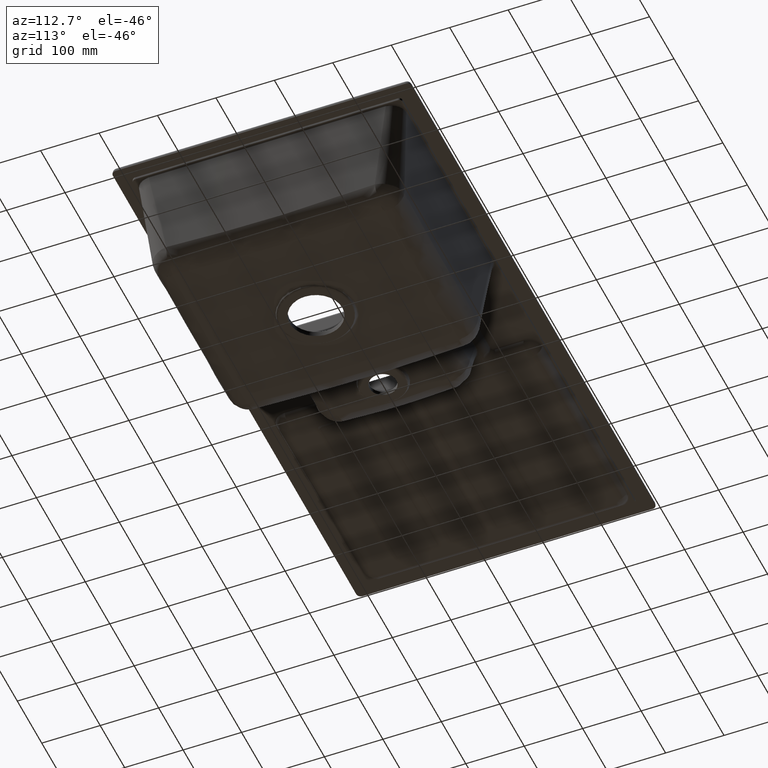
[diagram: clean part render]
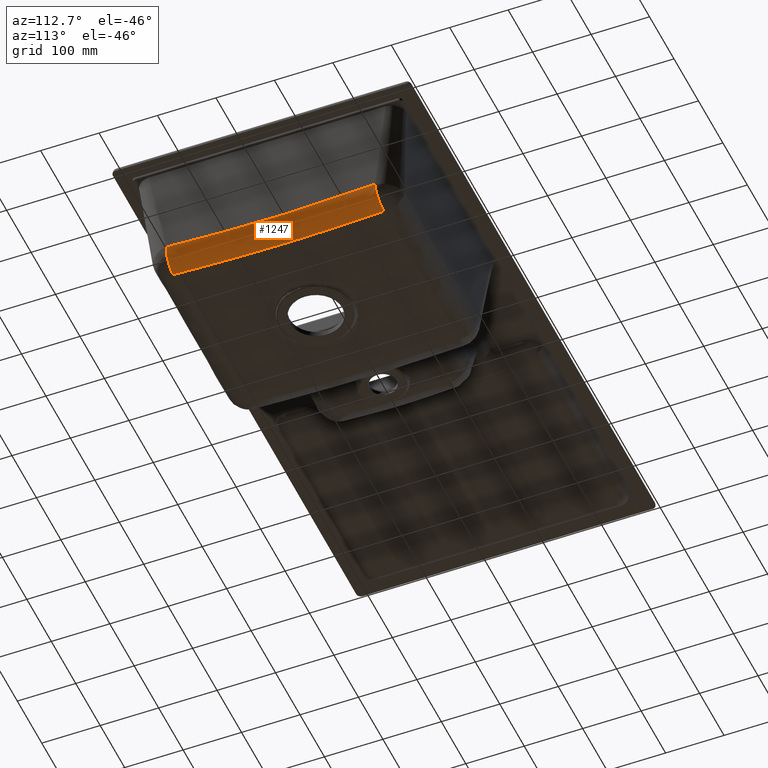
[diagram: same view with one face highlighted and labeled with its STEP entity id]
A machine part, auxiliary view. The second image highlights one B-rep face of the part: STEP entity #1247.
In plain terms, the highlighted face is a freeform B-spline surface patch.
Its self-contained STEP definition (entity closure, byte-faithful):
#192=(
BOUNDED_SURFACE()
B_SPLINE_SURFACE(3,2,((#14619,#14620,#14621),(#14622,#14623,#14624),(#14625,
#14626,#14627),(#14628,#14629,#14630),(#14631,#14632,#14633),(#14634,#14635,
#14636),(#14637,#14638,#14639),(#14640,#14641,#14642),(#14643,#14644,#14645),
(#14646,#14647,#14648)),.UNSPECIFIED.,.F.,.F.,.F.)
B_SPLINE_SURFACE_WITH_KNOTS((4,2,2,2,4),(3,3),(0.,0.25,0.5,0.75,1.),(0.,
1.),.UNSPECIFIED.)
GEOMETRIC_REPRESENTATION_ITEM()
RATIONAL_B_SPLINE_SURFACE(((1.,0.752344017055781,1.),(1.,0.753747401310163,
1.),(1.,0.755561926465457,1.),(1.,0.75894096236031,1.),(1.,0.760407728355347,
1.),(1.,0.760404199300868,1.),(1.,0.758936540185604,1.),(1.,0.755559859895283,
1.),(1.,0.753746818687007,1.),(1.,0.752344017048659,1.)))
REPRESENTATION_ITEM('')
SURFACE()
);
#474=FACE_OUTER_BOUND('',#1883,.T.);
#836=(
BOUNDED_CURVE()
B_SPLINE_CURVE(3,(#14605,#14606,#14607,#14608,#14609,#14610,#14611,#14612,
#14613,#14614),.UNSPECIFIED.,.F.,.F.)
B_SPLINE_CURVE_WITH_KNOTS((4,2,2,2,4),(0.,0.25,0.5,0.75,1.),
 .UNSPECIFIED.)
CURVE()
GEOMETRIC_REPRESENTATION_ITEM()
RATIONAL_B_SPLINE_CURVE((1.,1.,1.,1.,1.,1.,1.,1.,1.,1.))
REPRESENTATION_ITEM('')
);
#837=(
BOUNDED_CURVE()
B_SPLINE_CURVE(2,(#14616,#14617,#14618),.UNSPECIFIED.,.F.,.F.)
B_SPLINE_CURVE_WITH_KNOTS((3,3),(0.,1.),.UNSPECIFIED.)
CURVE()
GEOMETRIC_REPRESENTATION_ITEM()
RATIONAL_B_SPLINE_CURVE((1.,0.752344017048659,1.))
REPRESENTATION_ITEM('')
);
#1247=ADVANCED_FACE('',(#474),#192,.F.);
#1883=EDGE_LOOP('',(#3066,#3067,#3068,#3069));
#3066=ORIENTED_EDGE('',*,*,#5189,.F.);
#3067=ORIENTED_EDGE('',*,*,#5191,.T.);
#3068=ORIENTED_EDGE('',*,*,#5192,.T.);
#3069=ORIENTED_EDGE('',*,*,#4935,.F.);
#4252=VERTEX_POINT('',#10881);
#4253=VERTEX_POINT('',#10882);
#4396=VERTEX_POINT('',#14540);
#4397=VERTEX_POINT('',#14615);
#4935=EDGE_CURVE('',#4252,#4253,#5823,.T.);
#5189=EDGE_CURVE('',#4396,#4252,#5992,.T.);
#5191=EDGE_CURVE('',#4396,#4397,#836,.T.);
#5192=EDGE_CURVE('',#4397,#4253,#837,.T.);
#5823=B_SPLINE_CURVE_WITH_KNOTS('',3,(#10811,#10812,#10813,#10814,#10815,
#10816,#10817,#10818,#10819,#10820,#10821,#10822,#10823,#10824,#10825,#10826,
#10827,#10828,#10829,#10830,#10831,#10832,#10833,#10834,#10835,#10836,#10837,
#10838,#10839,#10840,#10841,#10842,#10843,#10844,#10845,#10846,#10847,#10848,
#10849,#10850,#10851,#10852,#10853,#10854,#10855,#10856,#10857,#10858,#10859,
#10860,#10861,#10862,#10863,#10864,#10865,#10866,#10867,#10868,#10869,#10870,
#10871,#10872,#10873,#10874,#10875,#10876,#10877,#10878,#10879,#10880),
 .UNSPECIFIED.,.F.,.F.,(4,2,2,1,2,2,2,2,2,1,2,2,2,2,2,2,2,2,2,2,2,2,2,2,
2,2,1,2,2,2,2,2,1,2,2,2,4),(0.,0.124999999999997,0.128906249999997,0.132812499999997,
0.140624999999996,0.156249999999995,0.187499999999992,0.249999999999987,
0.253906249999987,0.257812499999987,0.265624999999987,0.281249999999987,
0.312499999999987,0.374999999999988,0.382812499999988,0.390624999999987,
0.406249999999987,0.437499999999988,0.499999999999989,0.624999999999992,
0.632812499999993,0.640624999999993,0.656249999999993,0.687499999999994,
0.749999999999996,0.753906249999997,0.757812499999997,0.765624999999997,
0.781249999999997,0.812499999999998,0.875,0.87890625,0.8828125,0.890625,
0.90625,0.9375,1.),.UNSPECIFIED.);
#5992=B_SPLINE_CURVE_WITH_KNOTS('',3,(#14530,#14531,#14532,#14533,#14534,
#14535,#14536,#14537,#14538,#14539),.UNSPECIFIED.,.F.,.F.,(4,2,2,2,4),(0.,
0.25,0.5,0.75,1.),.UNSPECIFIED.);
#10811=CARTESIAN_POINT('',(936.768733568287,435.255470537962,-201.871663707372));
#10812=CARTESIAN_POINT('',(936.773353877904,419.377815171358,-202.716138483163));
#10813=CARTESIAN_POINT('',(936.797080239321,404.390485333206,-203.465288880352));
#10814=CARTESIAN_POINT('',(936.827657070809,389.749353843615,-204.13954696202));
#10815=CARTESIAN_POINT('',(936.828801660826,389.208933578888,-204.164363398395));
#10816=CARTESIAN_POINT('',(936.830912202175,388.227188650334,-204.209289854346));
#10817=CARTESIAN_POINT('',(936.834115663055,386.756911813696,-204.276357494767));
#10818=CARTESIAN_POINT('',(936.83741668563,385.2936076423,-204.342459004672));
#10819=CARTESIAN_POINT('',(936.844113721656,382.376158042772,-204.473373850463));
#10820=CARTESIAN_POINT('',(936.848703221138,380.443406112063,-204.558932848962));
#10821=CARTESIAN_POINT('',(936.86263662106,374.680589496312,-204.810457148378));
#10822=CARTESIAN_POINT('',(936.872123540029,370.88601291443,-204.971269753213));
#10823=CARTESIAN_POINT('',(936.900445180077,359.632871194684,-205.433096783386));
#10824=CARTESIAN_POINT('',(936.919080851809,352.305786922616,-205.713500424397));
#10825=CARTESIAN_POINT('',(936.939399901324,344.664045169129,-205.982230681837));
#10826=CARTESIAN_POINT('',(936.940767586865,344.143145328581,-206.000446173988));
#10827=CARTESIAN_POINT('',(936.943277473626,343.174750169656,-206.034089700445));
#10828=CARTESIAN_POINT('',(936.946991478362,341.724161113708,-206.084175362236));
#10829=CARTESIAN_POINT('',(936.950573010693,340.279445831781,-206.133122140341));
#10830=CARTESIAN_POINT('',(936.957609356868,337.397466531242,-206.22949718497));
#10831=CARTESIAN_POINT('',(936.962133173641,335.48608719935,-206.291722532614));
#10832=CARTESIAN_POINT('',(936.975545798453,329.778539981534,-206.47232452922));
#10833=CARTESIAN_POINT('',(936.984324098756,326.009046320264,-206.584627131858));
#10834=CARTESIAN_POINT('',(937.011539333375,314.778345215245,-206.897238754468));
#10835=CARTESIAN_POINT('',(937.032273044301,307.396165858608,-207.07325158914));
#10836=CARTESIAN_POINT('',(937.048397769876,299.105242058711,-207.234821750193));
#10837=CARTESIAN_POINT('',(937.050035925226,298.113392436329,-207.253617068514));
#10838=CARTESIAN_POINT('',(937.052744816352,296.207620701501,-207.288612337367));
#10839=CARTESIAN_POINT('',(937.053886791504,295.257081052401,-207.305525875265));
#10840=CARTESIAN_POINT('',(937.056895688772,292.411725180759,-207.354514199372));
#10841=CARTESIAN_POINT('',(937.058356300482,290.523177015345,-207.384836695996));
#10842=CARTESIAN_POINT('',(937.062490538482,284.876206640437,-207.468795027524));
#10843=CARTESIAN_POINT('',(937.065105090849,281.136521907766,-207.515421704085));
#10844=CARTESIAN_POINT('',(937.077188491259,269.938596155451,-207.627265100397));
#10845=CARTESIAN_POINT('',(937.09440513962,262.501850246461,-207.664445186775));
#10846=CARTESIAN_POINT('',(937.094463650558,239.820778416954,-207.66383891242));
#10847=CARTESIAN_POINT('',(937.07605149127,225.190296713251,-207.514047182916));
#10848=CARTESIAN_POINT('',(937.044540896165,208.913418256699,-207.196168826735));
#10849=CARTESIAN_POINT('',(937.042699783696,208.029590871358,-207.178406393266));
#10850=CARTESIAN_POINT('',(937.038689354906,206.187395232368,-207.140429901099));
#10851=CARTESIAN_POINT('',(937.036591451915,205.265930326475,-207.120936544395));
#10852=CARTESIAN_POINT('',(937.030113659251,202.499858653709,-207.060941142418));
#10853=CARTESIAN_POINT('',(937.025555205096,200.653570122604,-207.018923765282));
#10854=CARTESIAN_POINT('',(937.011699671251,195.103545734468,-206.886810306422));
#10855=CARTESIAN_POINT('',(937.00228994213,191.388569673612,-206.790652897244));
#10856=CARTESIAN_POINT('',(936.975008348635,180.166111190146,-206.477935359895));
#10857=CARTESIAN_POINT('',(936.958552669483,172.579765722018,-206.237129921911));
#10858=CARTESIAN_POINT('',(936.93671632212,164.332304692251,-205.946926621817));
#10859=CARTESIAN_POINT('',(936.935624067135,163.918588173195,-205.932280415123));
#10860=CARTESIAN_POINT('',(936.9332521652,163.018141759172,-205.900242144338));
#10861=CARTESIAN_POINT('',(936.929698962902,161.665875731301,-205.85186345643));
#10862=CARTESIAN_POINT('',(936.926157845373,160.308719224429,-205.802520923326));
#10863=CARTESIAN_POINT('',(936.91908623183,157.587625555104,-205.702550730191));
#10864=CARTESIAN_POINT('',(936.914385764675,155.764518774507,-205.634190432199));
#10865=CARTESIAN_POINT('',(936.900283560668,150.266112099684,-205.423969030515));
#10866=CARTESIAN_POINT('',(936.890867782458,146.56167357697,-205.276967419114));
#10867=CARTESIAN_POINT('',(936.862516801813,135.318174135434,-204.815400554082));
#10868=CARTESIAN_POINT('',(936.843001162459,127.648211701526,-204.480273269618));
#10869=CARTESIAN_POINT('',(936.825628941366,119.284926776296,-204.095070986196));
#10870=CARTESIAN_POINT('',(936.824823558755,118.889304854667,-204.076791274681));
#10871=CARTESIAN_POINT('',(936.823038372608,117.999432078522,-204.03557382544));
#10872=CARTESIAN_POINT('',(936.820401541787,116.662325348913,-203.973468871704));
#10873=CARTESIAN_POINT('',(936.817877311943,115.318284241427,-203.91052757834));
#10874=CARTESIAN_POINT('',(936.812955621333,112.620850384641,-203.783529872107));
#10875=CARTESIAN_POINT('',(936.809841970615,110.810090493378,-203.697377908613));
#10876=CARTESIAN_POINT('',(936.800870173816,105.339619161033,-203.434461540113));
#10877=CARTESIAN_POINT('',(936.795352991793,101.641689999585,-203.25323665709));
#10878=CARTESIAN_POINT('',(936.780073410944,90.3898129917292,-202.691720095955));
#10879=CARTESIAN_POINT('',(936.771042001869,82.6774422902777,-202.293586505774));
#10880=CARTESIAN_POINT('',(936.768733568244,74.7445293140849,-201.871663699503));
#10881=CARTESIAN_POINT('',(936.768733568287,435.255470537962,-201.871663707371));
#10882=CARTESIAN_POINT('',(936.768733568244,74.7445293140848,-201.871663699502));
#14530=CARTESIAN_POINT('',(969.100109471057,433.45109122863,-170.917781251958));
#14531=CARTESIAN_POINT('',(968.775220889765,433.650953178796,-174.631274728692));
#14532=CARTESIAN_POINT('',(967.799829728445,433.863990723447,-178.534536815705));
#14533=CARTESIAN_POINT('',(964.333533711468,434.278286782567,-185.987937700863));
#14534=CARTESIAN_POINT('',(961.837576164351,434.478647149868,-189.520818875612));
#14535=CARTESIAN_POINT('',(955.6874565554,434.821878709381,-195.40890975163));
#14536=CARTESIAN_POINT('',(952.047619443868,434.963950441527,-197.750404823829));
#14537=CARTESIAN_POINT('',(944.444312981481,435.167436988886,-200.8949808081));
#14538=CARTESIAN_POINT('',(940.4978978576,435.229080158482,-201.703829139108));
#14539=CARTESIAN_POINT('',(936.768733568287,435.255470537962,-201.871663707371));
#14540=CARTESIAN_POINT('',(969.100109471057,433.45109122863,-170.917781251958));
#14605=CARTESIAN_POINT('',(969.100109471057,433.45109122863,-170.917781251958));
#14606=CARTESIAN_POINT('',(968.961170883708,403.718333714437,-172.505856572226));
#14607=CARTESIAN_POINT('',(968.835416311012,373.979126174084,-173.943237915458));
#14608=CARTESIAN_POINT('',(968.650019991229,314.469146223375,-176.062327547314));
#14609=CARTESIAN_POINT('',(968.593252317202,284.69314409687,-176.711185030549));
#14610=CARTESIAN_POINT('',(968.593396577104,225.187345304894,-176.709536132327));
#14611=CARTESIAN_POINT('',(968.650232436505,195.44857767799,-176.059899286701));
#14612=CARTESIAN_POINT('',(968.835559939368,135.988881682331,-173.94159623583));
#14613=CARTESIAN_POINT('',(968.961239046193,106.267079567332,-172.505077471461));
#14614=CARTESIAN_POINT('',(969.100109471746,76.5489086240411,-170.917781244088));
#14615=CARTESIAN_POINT('',(969.100109471746,76.5489086240411,-170.917781244088));
#14616=CARTESIAN_POINT('',(969.100109471746,76.5489086240411,-170.917781244088));
#14617=CARTESIAN_POINT('',(966.50909865276,74.9549945710988,-200.533170422116));
#14618=CARTESIAN_POINT('',(936.768733568244,74.7445293140849,-201.871663699502));
#14619=CARTESIAN_POINT('',(936.768733568287,435.255470537962,-201.871663707371));
#14620=CARTESIAN_POINT('',(966.509098652125,435.045005280991,-200.533170429368));
#14621=CARTESIAN_POINT('',(969.100109471057,433.45109122863,-170.917781251958));
#14622=CARTESIAN_POINT('',(936.777422264414,405.396827174963,-203.45973641582));
#14623=CARTESIAN_POINT('',(966.381289320119,405.250531755561,-201.994037758962));
#14624=CARTESIAN_POINT('',(968.961170883708,403.718333714437,-172.505856572226));
#14625=CARTESIAN_POINT('',(936.835062664355,375.477810377687,-204.897120370941));
#14626=CARTESIAN_POINT('',(966.268853486863,375.357698323984,-203.279185230684));
#14627=CARTESIAN_POINT('',(968.835416311012,373.979126174084,-173.943237915458));
#14628=CARTESIAN_POINT('',(936.998989681297,315.373232701081,-207.016210002658));
#14629=CARTESIAN_POINT('',(966.108564867896,315.319613394066,-205.111292535236));
#14630=CARTESIAN_POINT('',(968.650019991229,314.469146223375,-176.062327547314));
#14631=CARTESIAN_POINT('',(937.09453568188,285.157305414223,-207.665067486047));
#14632=CARTESIAN_POINT('',(966.062372013901,285.094446908697,-205.639279289201));
#14633=CARTESIAN_POINT('',(968.593252317202,284.69314409687,-176.711185030549));
#14634=CARTESIAN_POINT('',(937.0943135889,224.721315805272,-207.663418587655));
#14635=CARTESIAN_POINT('',(966.062490372129,224.784287075443,-205.63792640868));
#14636=CARTESIAN_POINT('',(968.593396577104,225.187345304894,-176.709536132327));
#14637=CARTESIAN_POINT('',(936.998744216503,194.543522182088,-207.013781742318));
#14638=CARTESIAN_POINT('',(966.108744433497,194.597360732207,-205.109240088143));
#14639=CARTESIAN_POINT('',(968.650232436505,195.44857767799,-176.059899286701));
#14640=CARTESIAN_POINT('',(936.834993400451,134.490025061247,-204.895478691041));
#14641=CARTESIAN_POINT('',(966.268981415963,134.610252539732,-203.277722997268));
#14642=CARTESIAN_POINT('',(968.835559939368,135.988881682331,-173.94159623583));
#14643=CARTESIAN_POINT('',(936.777418005201,104.588519009294,-203.458957032949));
#14644=CARTESIAN_POINT('',(966.381351947065,104.734869631526,-201.993321971934));
#14645=CARTESIAN_POINT('',(968.961239046193,106.267079567332,-172.505077471461));
#14646=CARTESIAN_POINT('',(936.768733568244,74.7445293140849,-201.871663699502));
#14647=CARTESIAN_POINT('',(966.50909865276,74.9549945710988,-200.533170422116));
#14648=CARTESIAN_POINT('',(969.100109471746,76.5489086240411,-170.917781244088));